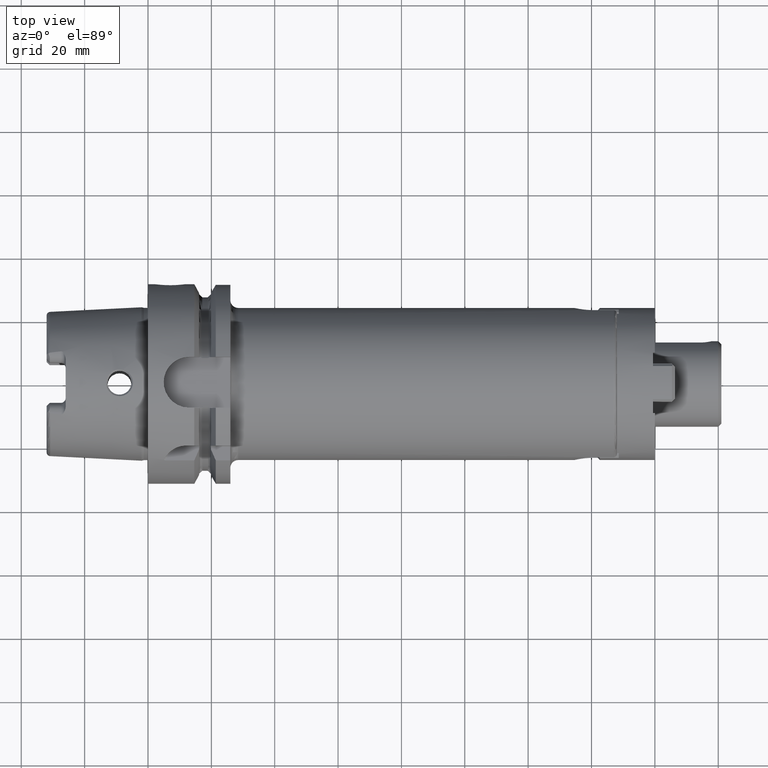
[diagram: clean part render]
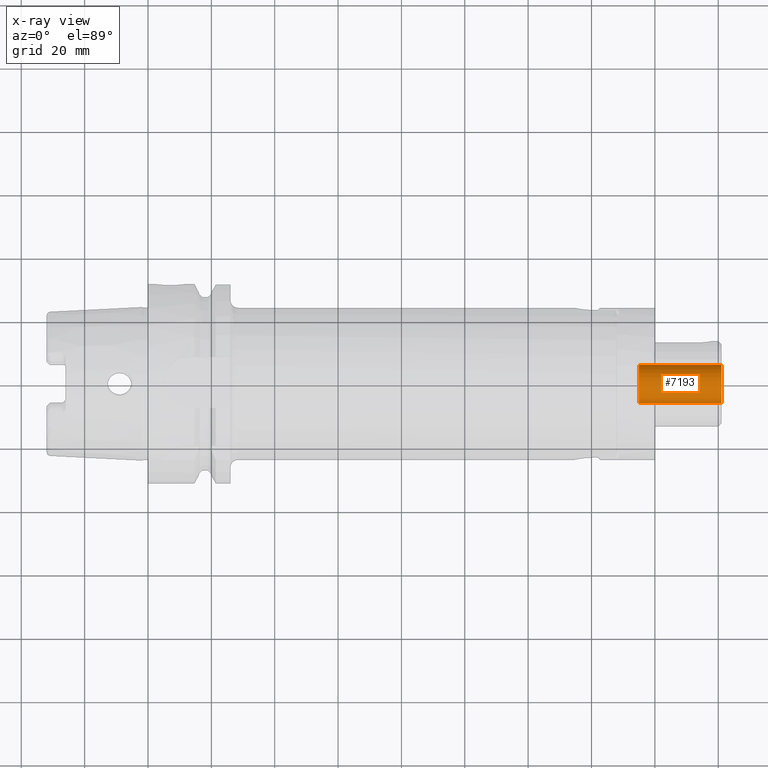
[diagram: x-ray — body ghosted, one internal face saturated and labeled with its STEP entity id]
A machine part, top view, then the same camera in x-ray: the body is ghosted and one INTERNAL B-rep face — a face not visible from any outside direction — is saturated and labeled: STEP entity #7193.
In plain terms, the highlighted cylindrical surface (edge-blend (fillet) strip) has radius 6 mm, axis along (1, 0, 0).
Its self-contained STEP definition (entity closure, byte-faithful):
#7119=CARTESIAN_POINT('',(1.81E2,0.E0,0.E0));
#7120=DIRECTION('',(-1.E0,0.E0,0.E0));
#7121=DIRECTION('',(0.E0,-1.E0,0.E0));
#7122=AXIS2_PLACEMENT_3D('',#7119,#7120,#7121);
#7124=DIRECTION('',(-1.E0,0.E0,0.E0));
#7125=VECTOR('',#7124,2.6E1);
#7126=CARTESIAN_POINT('',(1.81E2,6.E0,0.E0));
#7127=LINE('',#7126,#7125);
#7128=DIRECTION('',(-1.E0,0.E0,0.E0));
#7129=VECTOR('',#7128,2.6E1);
#7130=CARTESIAN_POINT('',(1.81E2,-6.E0,0.E0));
#7131=LINE('',#7130,#7129);
#7137=CARTESIAN_POINT('',(1.55E2,0.E0,0.E0));
#7138=DIRECTION('',(-1.E0,0.E0,0.E0));
#7139=DIRECTION('',(0.E0,-1.E0,0.E0));
#7140=AXIS2_PLACEMENT_3D('',#7137,#7138,#7139);
#7152=CARTESIAN_POINT('',(1.55E2,-6.E0,0.E0));
#7153=CARTESIAN_POINT('',(1.55E2,6.E0,0.E0));
#7154=VERTEX_POINT('',#7152);
#7155=VERTEX_POINT('',#7153);
#7156=CARTESIAN_POINT('',(1.81E2,-6.E0,0.E0));
#7157=CARTESIAN_POINT('',(1.81E2,6.E0,0.E0));
#7158=VERTEX_POINT('',#7156);
#7159=VERTEX_POINT('',#7157);
#7180=CARTESIAN_POINT('',(1.258073913851E2,0.E0,0.E0));
#7181=DIRECTION('',(1.E0,0.E0,0.E0));
#7182=DIRECTION('',(0.E0,-1.E0,0.E0));
#7183=AXIS2_PLACEMENT_3D('',#7180,#7181,#7182);
#7184=CYLINDRICAL_SURFACE('',#7183,6.E0);
#7186=ORIENTED_EDGE('',*,*,#7185,.T.);
#7187=ORIENTED_EDGE('',*,*,#7175,.T.);
#7189=ORIENTED_EDGE('',*,*,#7188,.F.);
#7190=ORIENTED_EDGE('',*,*,#7171,.F.);
#7191=EDGE_LOOP('',(#7186,#7187,#7189,#7190));
#7192=FACE_OUTER_BOUND('',#7191,.F.);
#7193=ADVANCED_FACE('',(#7192),#7184,.F.);
#7123=CIRCLE('',#7122,6.E0);
#7141=CIRCLE('',#7140,6.E0);
#7171=EDGE_CURVE('',#7158,#7154,#7131,.T.);
#7175=EDGE_CURVE('',#7159,#7155,#7127,.T.);
#7185=EDGE_CURVE('',#7158,#7159,#7123,.T.);
#7188=EDGE_CURVE('',#7154,#7155,#7141,.T.);